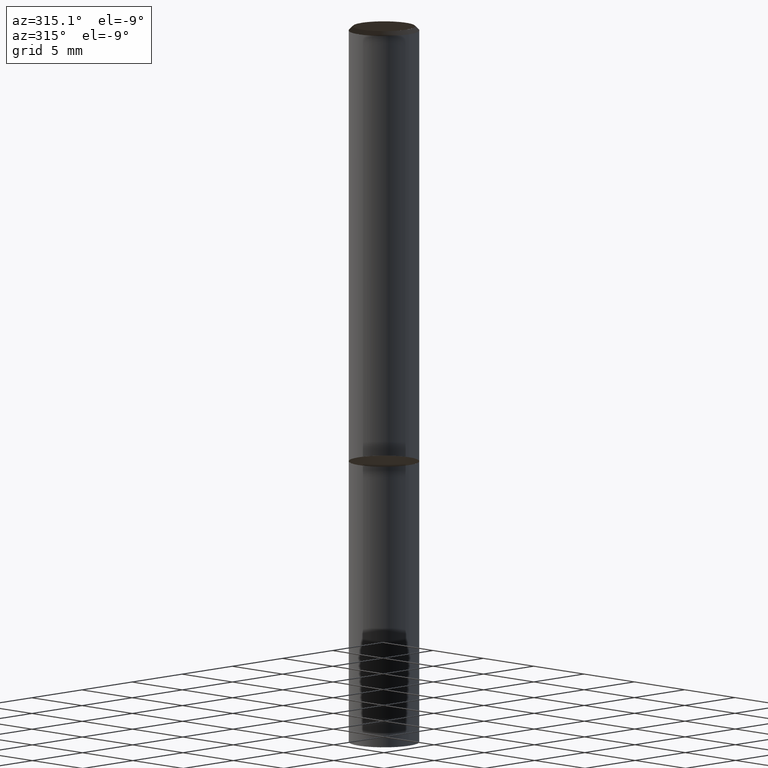
[diagram: clean part render]
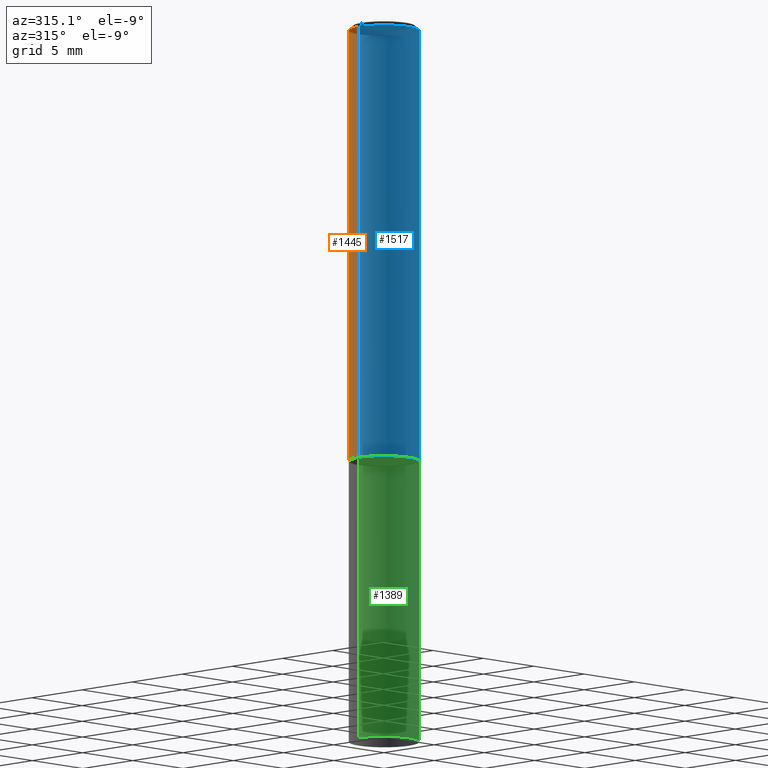
[diagram: same view with three faces highlighted in distinct colors, each labeled with its STEP entity id]
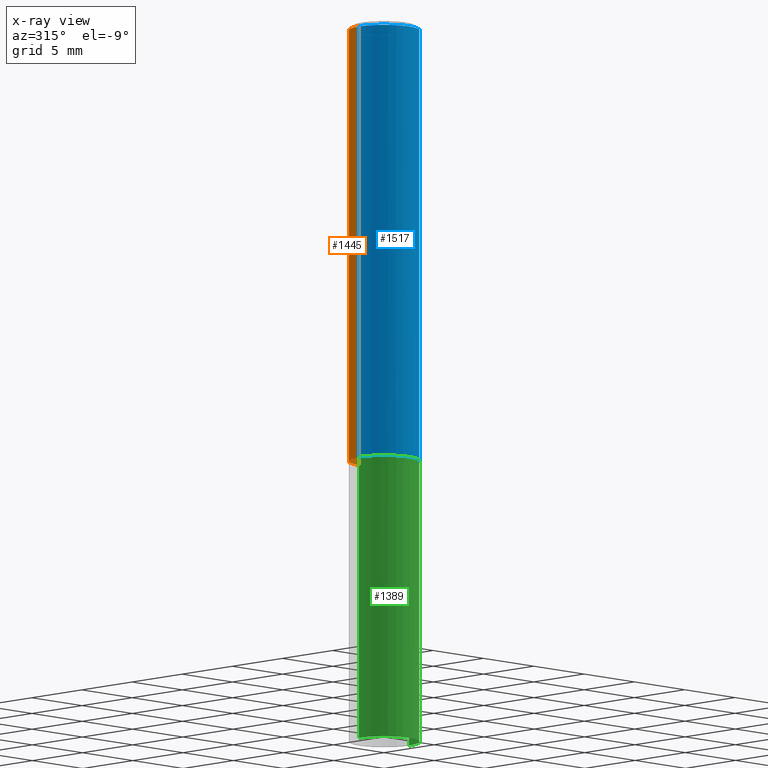
[diagram: x-ray of the same camera — body ghosted, the three highlighted faces saturated]
A machine part, auxiliary view with three faces highlighted in distinct colors.
The next image is the same camera in x-ray (body ghosted, the three faces saturated) — at least one of them is partly hidden behind the body in this view.
Their STEP definitions:

[orange] entity #1445 — the highlighted face is a freeform B-spline surface patch.
#1267=CARTESIAN_POINT('',(2.5,0.0,0.0));
#1268=CARTESIAN_POINT('',(2.5,2.5,0.0));
#1269=CARTESIAN_POINT('',(0.0,2.5,0.0));
#1270=CARTESIAN_POINT('',(-2.5,2.5,0.0));
#1271=CARTESIAN_POINT('',(-2.5,0.0,0.0));
#1278=CARTESIAN_POINT('',(2.5,0.0,30.7));
#1279=CARTESIAN_POINT('',(2.5,2.5,30.7));
#1280=CARTESIAN_POINT('',(0.0,2.5,30.7));
#1281=CARTESIAN_POINT('',(-2.5,2.5,30.7));
#1282=CARTESIAN_POINT('',(-2.5,0.0,30.7));
#1426=(
BOUNDED_SURFACE()
B_SPLINE_SURFACE(1,2,(
(#1267,#1268,#1269,#1270,#1271),
(#1278,#1279,#1280,#1281,#1282)
), .UNSPECIFIED.,.F.,.F.,.F.)
B_SPLINE_SURFACE_WITH_KNOTS((2,2),(3,2,3),(
0.0,1.0),(
0.0,0.5,1.0), .UNSPECIFIED.)
GEOMETRIC_REPRESENTATION_ITEM()
RATIONAL_B_SPLINE_SURFACE(((1.0,0.707106781187,1.0,0.707106781187,1.0),
(1.0,0.707106781187,1.0,0.707106781187,1.0)
))
REPRESENTATION_ITEM('')
SURFACE()
);
#1427=(
BOUNDED_CURVE()
B_SPLINE_CURVE(2,(#1271,#1270,#1269,#1268,#1267),.UNSPECIFIED.,.F.,.F.)
B_SPLINE_CURVE_WITH_KNOTS((3,2,3),
(0.0,0.5,1.0),.UNSPECIFIED.)
CURVE()
GEOMETRIC_REPRESENTATION_ITEM()
RATIONAL_B_SPLINE_CURVE((1.0,0.707106781187,1.0,0.707106781187,1.0))
REPRESENTATION_ITEM('')
);
#1428=(
BOUNDED_CURVE()
B_SPLINE_CURVE(1,(#1267,#1278),.UNSPECIFIED.,.F.,.F.)
B_SPLINE_CURVE_WITH_KNOTS((2,2),
(0.0,1.0),.UNSPECIFIED.)
CURVE()
GEOMETRIC_REPRESENTATION_ITEM()
RATIONAL_B_SPLINE_CURVE((1.0,1.0))
REPRESENTATION_ITEM('')
);
#1429=(
BOUNDED_CURVE()
B_SPLINE_CURVE(2,(#1278,#1279,#1280,#1281,#1282),.UNSPECIFIED.,.F.,.F.)
B_SPLINE_CURVE_WITH_KNOTS((3,2,3),
(0.0,0.5,1.0),.UNSPECIFIED.)
CURVE()
GEOMETRIC_REPRESENTATION_ITEM()
RATIONAL_B_SPLINE_CURVE((1.0,0.707106781187,1.0,0.707106781187,1.0))
REPRESENTATION_ITEM('')
);
#1430=(
BOUNDED_CURVE()
B_SPLINE_CURVE(1,(#1282,#1271),.UNSPECIFIED.,.F.,.F.)
B_SPLINE_CURVE_WITH_KNOTS((2,2),
(0.0,1.0),.UNSPECIFIED.)
CURVE()
GEOMETRIC_REPRESENTATION_ITEM()
RATIONAL_B_SPLINE_CURVE((1.0,1.0))
REPRESENTATION_ITEM('')
);
#1431=VERTEX_POINT('',#1267);
#1432=VERTEX_POINT('',#1271);
#1433=VERTEX_POINT('',#1278);
#1434=VERTEX_POINT('',#1282);
#1435=EDGE_CURVE('',#1432,#1431,#1427,.T.);
#1436=EDGE_CURVE('',#1431,#1433,#1428,.T.);
#1437=EDGE_CURVE('',#1433,#1434,#1429,.T.);
#1438=EDGE_CURVE('',#1434,#1432,#1430,.T.);
#1439=ORIENTED_EDGE('',*,*,#1435,.T.);
#1440=ORIENTED_EDGE('',*,*,#1436,.T.);
#1441=ORIENTED_EDGE('',*,*,#1437,.T.);
#1442=ORIENTED_EDGE('',*,*,#1438,.T.);
#1443=EDGE_LOOP('',(#1439,#1440,#1441,#1442));
#1444=FACE_OUTER_BOUND('',#1443,.T.);
#1445=ADVANCED_FACE('',(#1444),#1426,.T.);

[blue] entity #1517 — the highlighted face is a freeform B-spline surface patch.
#1267=CARTESIAN_POINT('',(2.5,0.0,0.0));
#1271=CARTESIAN_POINT('',(-2.5,0.0,0.0));
#1275=CARTESIAN_POINT('',(-2.5,-2.5,0.0));
#1276=CARTESIAN_POINT('',(0.0,-2.5,0.0));
#1277=CARTESIAN_POINT('',(2.5,-2.5,0.0));
#1278=CARTESIAN_POINT('',(2.5,0.0,30.7));
#1282=CARTESIAN_POINT('',(-2.5,0.0,30.7));
#1289=CARTESIAN_POINT('',(-2.5,-2.5,30.7));
#1290=CARTESIAN_POINT('',(0.0,-2.5,30.7));
#1291=CARTESIAN_POINT('',(2.5,-2.5,30.7));
#1498=(
BOUNDED_SURFACE()
B_SPLINE_SURFACE(1,2,(
(#1271,#1275,#1276,#1277,#1267),
(#1282,#1289,#1290,#1291,#1278)
), .UNSPECIFIED.,.F.,.F.,.F.)
B_SPLINE_SURFACE_WITH_KNOTS((2,2),(3,2,3),(
0.0,1.0),(
0.0,0.5,1.0), .UNSPECIFIED.)
GEOMETRIC_REPRESENTATION_ITEM()
RATIONAL_B_SPLINE_SURFACE(((1.0,0.707106781187,1.0,0.707106781187,1.0),
(1.0,0.707106781187,1.0,0.707106781187,1.0)
))
REPRESENTATION_ITEM('')
SURFACE()
);
#1499=(
BOUNDED_CURVE()
B_SPLINE_CURVE(2,(#1267,#1277,#1276,#1275,#1271),.UNSPECIFIED.,.F.,.F.)
B_SPLINE_CURVE_WITH_KNOTS((3,2,3),
(0.0,0.5,1.0),.UNSPECIFIED.)
CURVE()
GEOMETRIC_REPRESENTATION_ITEM()
RATIONAL_B_SPLINE_CURVE((1.0,0.707106781187,1.0,0.707106781187,1.0))
REPRESENTATION_ITEM('')
);
#1500=(
BOUNDED_CURVE()
B_SPLINE_CURVE(1,(#1271,#1282),.UNSPECIFIED.,.F.,.F.)
B_SPLINE_CURVE_WITH_KNOTS((2,2),
(0.0,1.0),.UNSPECIFIED.)
CURVE()
GEOMETRIC_REPRESENTATION_ITEM()
RATIONAL_B_SPLINE_CURVE((1.0,1.0))
REPRESENTATION_ITEM('')
);
#1501=(
BOUNDED_CURVE()
B_SPLINE_CURVE(2,(#1282,#1289,#1290,#1291,#1278),.UNSPECIFIED.,.F.,.F.)
B_SPLINE_CURVE_WITH_KNOTS((3,2,3),
(0.0,0.5,1.0),.UNSPECIFIED.)
CURVE()
GEOMETRIC_REPRESENTATION_ITEM()
RATIONAL_B_SPLINE_CURVE((1.0,0.707106781187,1.0,0.707106781187,1.0))
REPRESENTATION_ITEM('')
);
#1502=(
BOUNDED_CURVE()
B_SPLINE_CURVE(1,(#1278,#1267),.UNSPECIFIED.,.F.,.F.)
B_SPLINE_CURVE_WITH_KNOTS((2,2),
(0.0,1.0),.UNSPECIFIED.)
CURVE()
GEOMETRIC_REPRESENTATION_ITEM()
RATIONAL_B_SPLINE_CURVE((1.0,1.0))
REPRESENTATION_ITEM('')
);
#1503=VERTEX_POINT('',#1267);
#1504=VERTEX_POINT('',#1271);
#1505=VERTEX_POINT('',#1278);
#1506=VERTEX_POINT('',#1282);
#1507=EDGE_CURVE('',#1503,#1504,#1499,.T.);
#1508=EDGE_CURVE('',#1504,#1506,#1500,.T.);
#1509=EDGE_CURVE('',#1506,#1505,#1501,.T.);
#1510=EDGE_CURVE('',#1505,#1503,#1502,.T.);
#1511=ORIENTED_EDGE('',*,*,#1507,.T.);
#1512=ORIENTED_EDGE('',*,*,#1508,.T.);
#1513=ORIENTED_EDGE('',*,*,#1509,.T.);
#1514=ORIENTED_EDGE('',*,*,#1510,.T.);
#1515=EDGE_LOOP('',(#1511,#1512,#1513,#1514));
#1516=FACE_OUTER_BOUND('',#1515,.T.);
#1517=ADVANCED_FACE('',(#1516),#1498,.T.);

[green] entity #1389 — the highlighted face is a freeform B-spline surface patch.
#109=CARTESIAN_POINT('',(0.0,-2.5,-20.0));
#410=CARTESIAN_POINT('',(2.5,0.0,-20.0));
#1012=CARTESIAN_POINT('',(-2.5,0.0,-20.0));
#1267=CARTESIAN_POINT('',(2.5,0.0,0.0));
#1271=CARTESIAN_POINT('',(-2.5,0.0,0.0));
#1273=CARTESIAN_POINT('',(-2.5,-2.5,-20.0));
#1274=CARTESIAN_POINT('',(2.5,-2.5,-20.0));
#1275=CARTESIAN_POINT('',(-2.5,-2.5,0.0));
#1276=CARTESIAN_POINT('',(0.0,-2.5,0.0));
#1277=CARTESIAN_POINT('',(2.5,-2.5,0.0));
#1370=(
BOUNDED_SURFACE()
B_SPLINE_SURFACE(1,2,(
(#1012,#1273,#109,#1274,#410),
(#1271,#1275,#1276,#1277,#1267)
), .UNSPECIFIED.,.F.,.F.,.F.)
B_SPLINE_SURFACE_WITH_KNOTS((2,2),(3,2,3),(
0.0,1.0),(
0.0,0.5,1.0), .UNSPECIFIED.)
GEOMETRIC_REPRESENTATION_ITEM()
RATIONAL_B_SPLINE_SURFACE(((1.0,0.707106781187,1.0,0.707106781187,1.0),
(1.0,0.707106781187,1.0,0.707106781187,1.0)
))
REPRESENTATION_ITEM('')
SURFACE()
);
#1371=(
BOUNDED_CURVE()
B_SPLINE_CURVE(2,(#410,#1274,#109,#1273,#1012),.UNSPECIFIED.,.F.,.F.)
B_SPLINE_CURVE_WITH_KNOTS((3,2,3),
(0.0,0.5,1.0),.UNSPECIFIED.)
CURVE()
GEOMETRIC_REPRESENTATION_ITEM()
RATIONAL_B_SPLINE_CURVE((1.0,0.707106781187,1.0,0.707106781187,1.0))
REPRESENTATION_ITEM('')
);
#1372=(
BOUNDED_CURVE()
B_SPLINE_CURVE(1,(#1012,#1271),.UNSPECIFIED.,.F.,.F.)
B_SPLINE_CURVE_WITH_KNOTS((2,2),
(0.0,1.0),.UNSPECIFIED.)
CURVE()
GEOMETRIC_REPRESENTATION_ITEM()
RATIONAL_B_SPLINE_CURVE((1.0,1.0))
REPRESENTATION_ITEM('')
);
#1373=(
BOUNDED_CURVE()
B_SPLINE_CURVE(2,(#1271,#1275,#1276,#1277,#1267),.UNSPECIFIED.,.F.,.F.)
B_SPLINE_CURVE_WITH_KNOTS((3,2,3),
(0.0,0.5,1.0),.UNSPECIFIED.)
CURVE()
GEOMETRIC_REPRESENTATION_ITEM()
RATIONAL_B_SPLINE_CURVE((1.0,0.707106781187,1.0,0.707106781187,1.0))
REPRESENTATION_ITEM('')
);
#1374=(
BOUNDED_CURVE()
B_SPLINE_CURVE(1,(#1267,#410),.UNSPECIFIED.,.F.,.F.)
B_SPLINE_CURVE_WITH_KNOTS((2,2),
(0.0,1.0),.UNSPECIFIED.)
CURVE()
GEOMETRIC_REPRESENTATION_ITEM()
RATIONAL_B_SPLINE_CURVE((1.0,1.0))
REPRESENTATION_ITEM('')
);
#1375=VERTEX_POINT('',#410);
#1376=VERTEX_POINT('',#1012);
#1377=VERTEX_POINT('',#1267);
#1378=VERTEX_POINT('',#1271);
#1379=EDGE_CURVE('',#1375,#1376,#1371,.T.);
#1380=EDGE_CURVE('',#1376,#1378,#1372,.T.);
#1381=EDGE_CURVE('',#1378,#1377,#1373,.T.);
#1382=EDGE_CURVE('',#1377,#1375,#1374,.T.);
#1383=ORIENTED_EDGE('',*,*,#1379,.T.);
#1384=ORIENTED_EDGE('',*,*,#1380,.T.);
#1385=ORIENTED_EDGE('',*,*,#1381,.T.);
#1386=ORIENTED_EDGE('',*,*,#1382,.T.);
#1387=EDGE_LOOP('',(#1383,#1384,#1385,#1386));
#1388=FACE_OUTER_BOUND('',#1387,.T.);
#1389=ADVANCED_FACE('',(#1388),#1370,.T.);